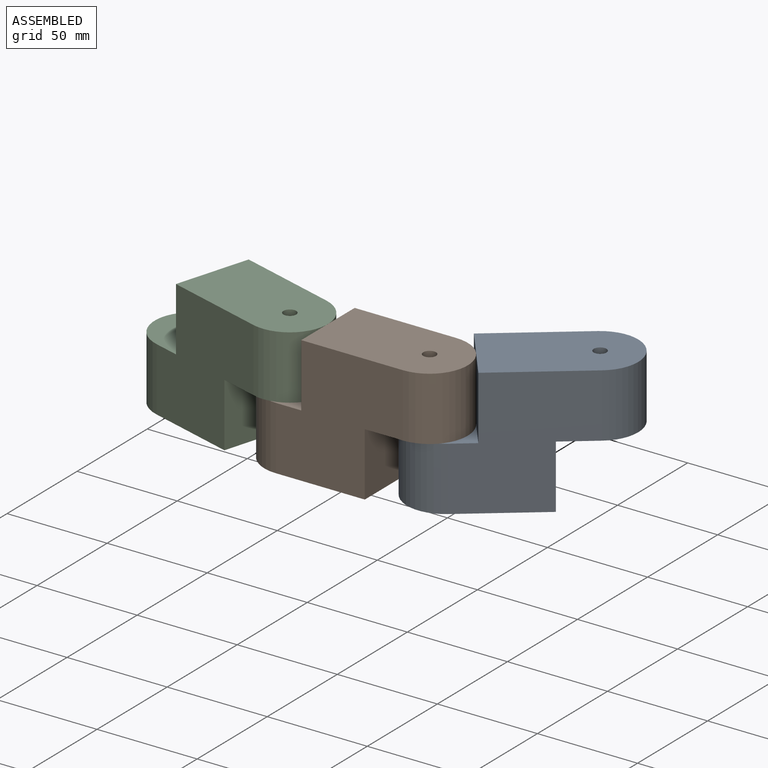
[diagram: assembled view]
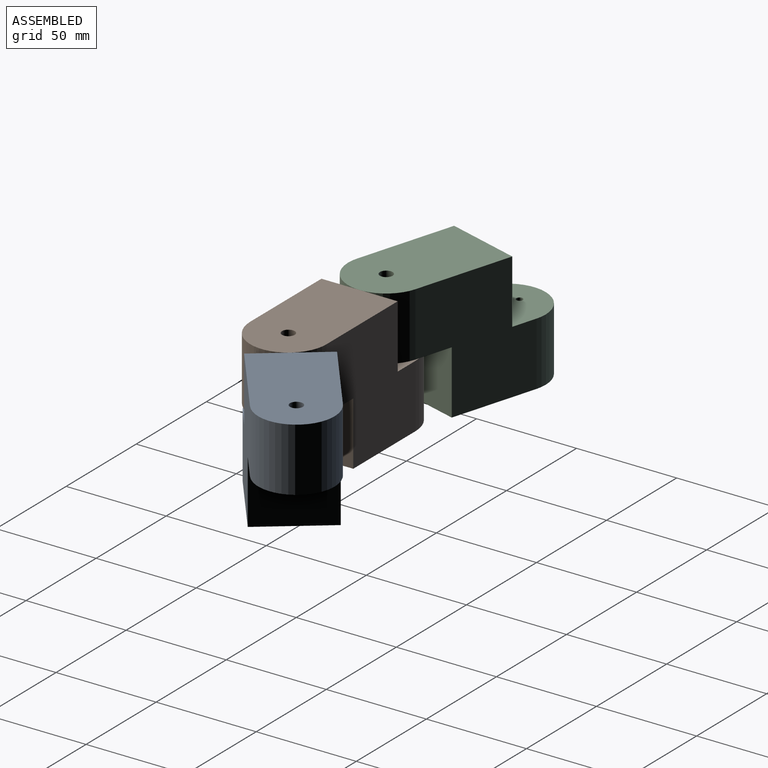
[diagram: assembled view, second angle]
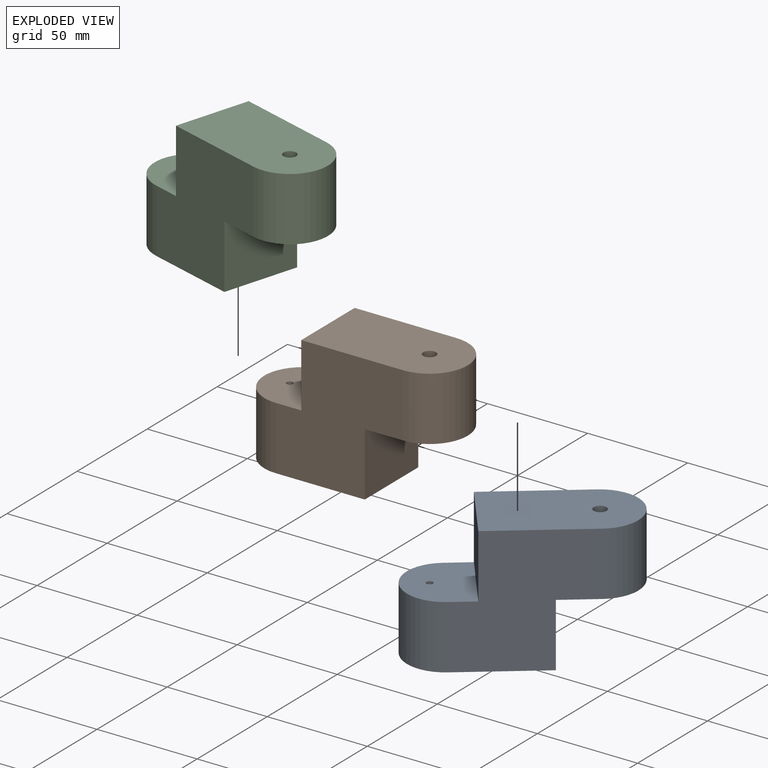
[diagram: exploded view]
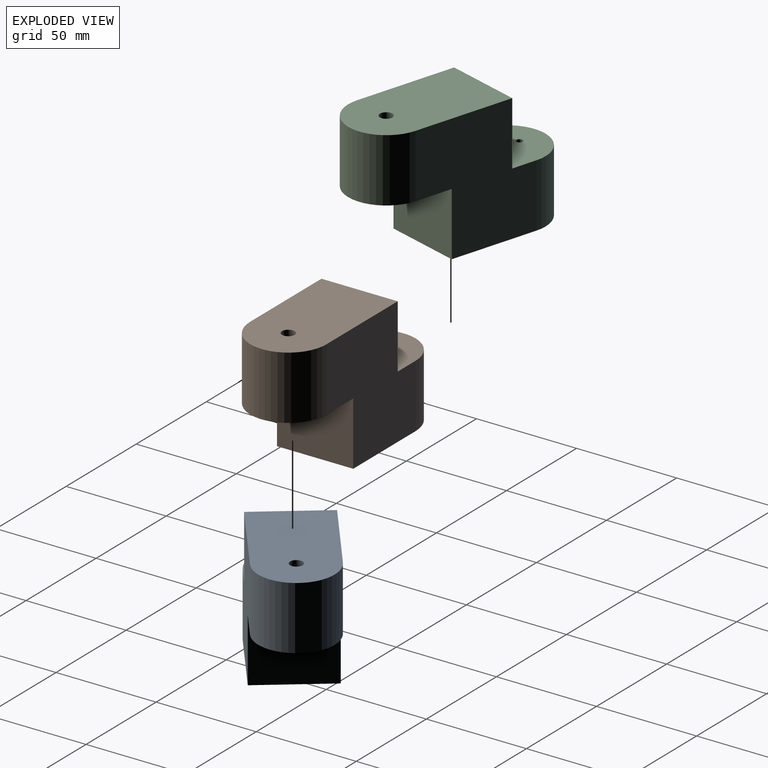
[diagram: exploded view, second angle]
ASSEMBLY  parts=3 mates=2
PART A: 12 faces, bbox 101.6x38.1x63.5 mm
  f0: plane 69.85x38.1mm, normal (0,0,1), area 2473.9mm2, adj f1,f6,f7,f8,f11
  f1: plane 38.1x31.75mm, normal (-1,0,0), area 1209.7mm2, adj f0,f2,f6,f7
  f2: plane 38.1x31.75mm, normal (0,0,1), area 1046mm2, adj f1,f6,f7,f9,f10
  f3: plane 63.5x38.1mm, normal (0,0,-1), area 2255.7mm2, adj f4,f6,f7,f9,f10
  f4: plane 38.1x31.75mm, normal (1,0,0), area 1209.7mm2, adj f3,f5,f6,f7
  f5: plane 38.1x38.1mm, normal (0,0,-1), area 1264.2mm2, adj f4,f6,f7,f8,f11
  f6: plane 63.5x63.5mm, normal (0,-1,0), area 3024.2mm2, adj f0,f1,f2,f3,f4,f5,f10,f11
  f7: plane 63.5x63.5mm, normal (0,1,0), area 3024.2mm2, adj f0,f1,f2,f3,f4,f5,f10,f11
  f8: cylinder r=3.17mm len=31.75mm, axis (0,0,1), area 633.4mm2, adj f0,f5
  f9: cylinder r=1.59mm len=31.75mm, axis (0,0,1), area 316.7mm2, adj f2,f3
  f10: cylinder r=19.05mm len=38.1mm, axis (0,0,1), area 1900.2mm2, adj f2,f3,f6,f7
  f11: cylinder r=19.05mm len=38.1mm, axis (0,0,-1), area 1900.2mm2, adj f0,f5,f6,f7
PART B: same geometry as A
PART C: same geometry as A
PLACE A rot(axis=(0,0,1),37.7deg) t=(62.95,42.35,-1.06)mm
PLACE B t=(1.06,19.05,-1.06)mm
PLACE C rot(axis=(0,0,-1),16.4deg) t=(-67.51,27.99,-1.06)mm
MATE revolute B.f11 <-> A.f9  axis (0,0,-1) through (32.81,19.05,-1.06)mm
MATE revolute B.f9 <-> C.f11  axis (0,0,1) through (-37.04,19.05,-1.06)mm
